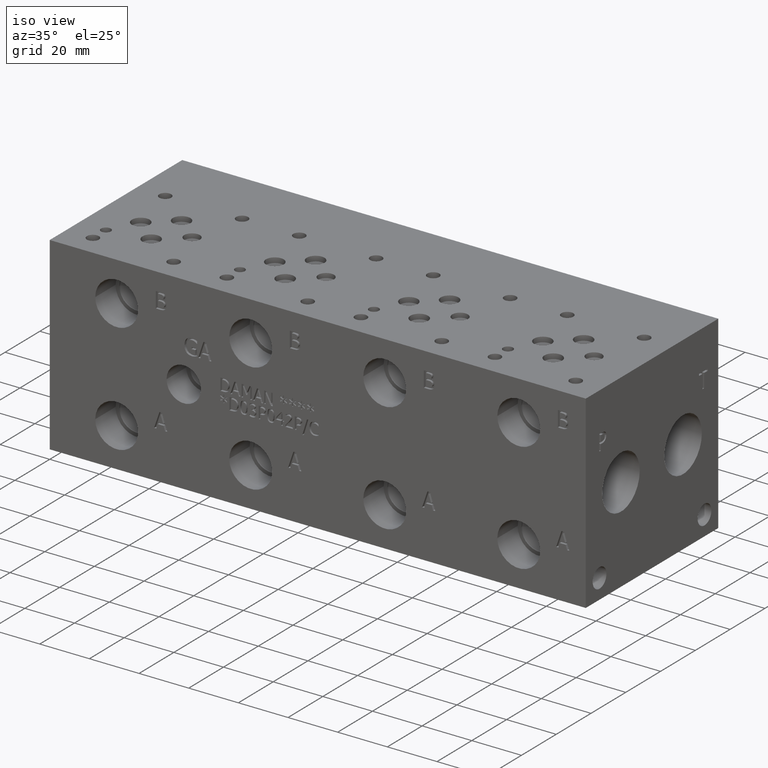
[diagram: clean part render]
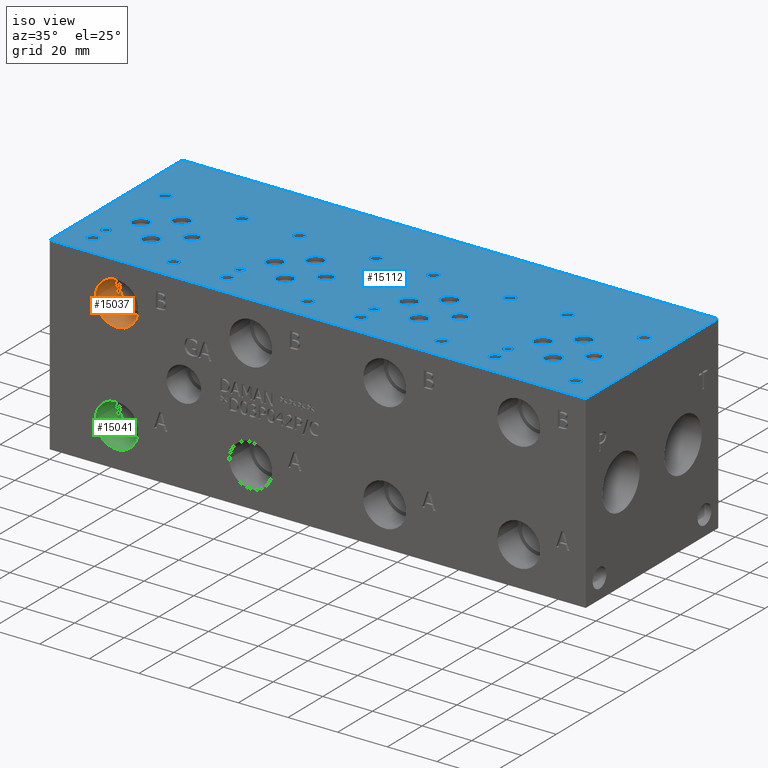
[diagram: same view with three faces highlighted in distinct colors, each labeled with its STEP entity id]
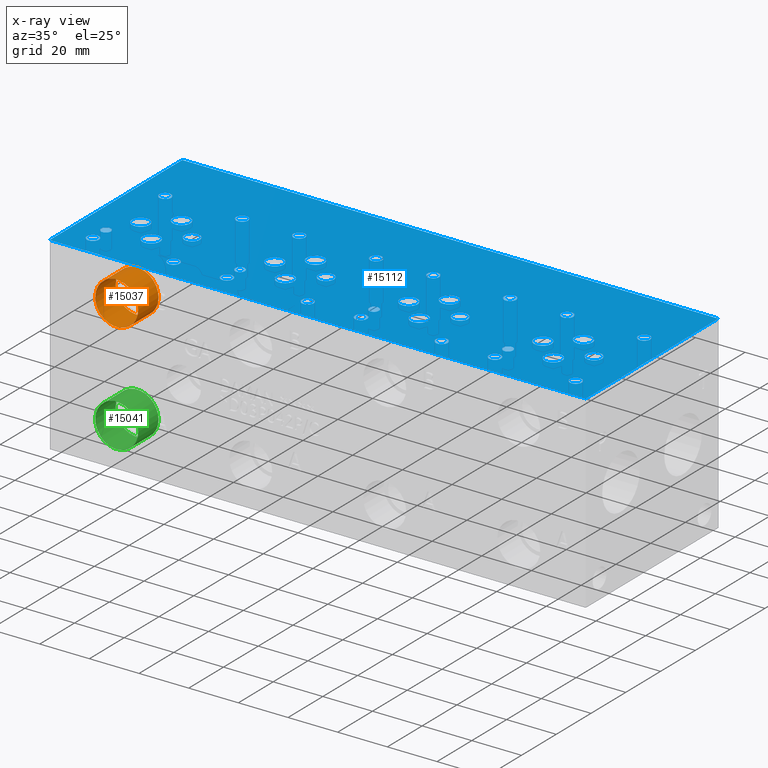
[diagram: x-ray of the same camera — body ghosted, the three highlighted faces saturated]
A machine part, iso view with three faces highlighted in distinct colors.
The next image is the same camera in x-ray (body ghosted, the three faces saturated) — at least one of them is partly hidden behind the body in this view.
Their STEP definitions:

[orange] entity #15037 — the highlighted cylindrical surface (bore or boss wall) has radius 8.6487 mm, axis along (0, -1, 0).
#74=CYLINDRICAL_SURFACE('',#15892,8.6487);
#180=CIRCLE('',#15224,8.6487);
#181=CIRCLE('',#15225,8.6487);
#420=CIRCLE('',#15889,8.6487);
#421=CIRCLE('',#15890,8.6487);
#1933=FACE_OUTER_BOUND('',#2807,.T.);
#2807=EDGE_LOOP('',(#12902,#12903,#12904,#12905,#12906,#12907));
#4233=LINE('',#25718,#5590);
#5590=VECTOR('',#18897,8.6487);
#6066=VERTEX_POINT('',#21791);
#6067=VERTEX_POINT('',#21792);
#6988=VERTEX_POINT('',#25711);
#6989=VERTEX_POINT('',#25712);
#7689=EDGE_CURVE('',#6066,#6067,#180,.T.);
#7690=EDGE_CURVE('',#6067,#6066,#181,.T.);
#9024=EDGE_CURVE('',#6988,#6989,#420,.T.);
#9025=EDGE_CURVE('',#6989,#6988,#421,.T.);
#9027=EDGE_CURVE('',#6067,#6989,#4233,.T.);
#12902=ORIENTED_EDGE('',*,*,#7689,.F.);
#12903=ORIENTED_EDGE('',*,*,#7690,.F.);
#12904=ORIENTED_EDGE('',*,*,#9027,.T.);
#12905=ORIENTED_EDGE('',*,*,#9024,.F.);
#12906=ORIENTED_EDGE('',*,*,#9025,.F.);
#12907=ORIENTED_EDGE('',*,*,#9027,.F.);
#15037=ADVANCED_FACE('',(#1933),#74,.F.);
#15224=AXIS2_PLACEMENT_3D('',#21793,#16626,#16627);
#15225=AXIS2_PLACEMENT_3D('',#21794,#16628,#16629);
#15889=AXIS2_PLACEMENT_3D('',#25713,#18889,#18890);
#15890=AXIS2_PLACEMENT_3D('',#25714,#18891,#18892);
#15892=AXIS2_PLACEMENT_3D('',#25717,#18895,#18896);
#16626=DIRECTION('center_axis',(0.,1.,0.));
#16627=DIRECTION('ref_axis',(1.,0.,0.));
#16628=DIRECTION('center_axis',(0.,1.,0.));
#16629=DIRECTION('ref_axis',(1.,0.,0.));
#18889=DIRECTION('center_axis',(0.,-1.,0.));
#18890=DIRECTION('ref_axis',(1.,0.,0.));
#18891=DIRECTION('center_axis',(0.,-1.,0.));
#18892=DIRECTION('ref_axis',(1.,0.,0.));
#18895=DIRECTION('center_axis',(0.,-1.,0.));
#18896=DIRECTION('ref_axis',(1.,0.,0.));
#18897=DIRECTION('',(0.,1.,0.));
#21791=CARTESIAN_POINT('',(35.6235,0.,60.325));
#21792=CARTESIAN_POINT('',(18.3261,0.,60.325));
#21793=CARTESIAN_POINT('Origin',(26.9748,0.,60.325));
#21794=CARTESIAN_POINT('Origin',(26.9748,0.,60.325));
#25711=CARTESIAN_POINT('',(35.6235,11.7348,60.325));
#25712=CARTESIAN_POINT('',(18.3261,11.7348,60.325));
#25713=CARTESIAN_POINT('Origin',(26.9748,11.7348,60.325));
#25714=CARTESIAN_POINT('Origin',(26.9748,11.7348,60.325));
#25717=CARTESIAN_POINT('Origin',(26.9748,5.8674,60.325));
#25718=CARTESIAN_POINT('',(18.3261,5.8674,60.325));

[blue] entity #15112 — the highlighted planar face has unit normal (0, 0, 1).
#208=CIRCLE('',#15557,3.175);
#209=CIRCLE('',#15558,3.175);
#212=CIRCLE('',#15563,3.175);
#213=CIRCLE('',#15564,3.175);
#216=CIRCLE('',#15569,3.175);
#217=CIRCLE('',#15570,3.175);
#220=CIRCLE('',#15575,3.175);
#221=CIRCLE('',#15576,3.175);
#224=CIRCLE('',#15581,3.5687);
#225=CIRCLE('',#15582,3.5687);
#228=CIRCLE('',#15587,3.5687);
#229=CIRCLE('',#15588,3.5687);
#232=CIRCLE('',#15593,3.5687);
#233=CIRCLE('',#15594,3.5687);
#236=CIRCLE('',#15599,3.5687);
#237=CIRCLE('',#15600,3.5687);
#240=CIRCLE('',#15605,3.5687);
#241=CIRCLE('',#15606,3.5687);
#244=CIRCLE('',#15611,3.5687);
#245=CIRCLE('',#15612,3.5687);
#248=CIRCLE('',#15617,3.5687);
#249=CIRCLE('',#15618,3.5687);
#252=CIRCLE('',#15623,3.5687);
#253=CIRCLE('',#15624,3.5687);
#256=CIRCLE('',#15629,3.5687);
#257=CIRCLE('',#15630,3.5687);
#260=CIRCLE('',#15635,3.5687);
#261=CIRCLE('',#15636,3.5687);
#264=CIRCLE('',#15641,3.5687);
#265=CIRCLE('',#15642,3.5687);
#268=CIRCLE('',#15647,3.5687);
#269=CIRCLE('',#15648,3.5687);
#272=CIRCLE('',#15653,1.9812);
#273=CIRCLE('',#15654,1.9812);
#276=CIRCLE('',#15659,1.9812);
#277=CIRCLE('',#15660,1.9812);
#280=CIRCLE('',#15665,1.9812);
#281=CIRCLE('',#15666,1.9812);
#284=CIRCLE('',#15671,1.9812);
#285=CIRCLE('',#15672,1.9812);
#291=CIRCLE('',#15681,2.413);
#292=CIRCLE('',#15682,2.413);
#298=CIRCLE('',#15692,2.413);
#299=CIRCLE('',#15693,2.413);
#305=CIRCLE('',#15703,2.413);
#306=CIRCLE('',#15704,2.413);
#312=CIRCLE('',#15714,2.413);
#313=CIRCLE('',#15715,2.413);
#319=CIRCLE('',#15725,2.413);
#320=CIRCLE('',#15726,2.413);
#326=CIRCLE('',#15736,2.413);
#327=CIRCLE('',#15737,2.413);
#333=CIRCLE('',#15747,2.413);
#334=CIRCLE('',#15748,2.413);
#340=CIRCLE('',#15758,2.413);
#341=CIRCLE('',#15759,2.413);
#347=CIRCLE('',#15769,2.413);
#348=CIRCLE('',#15770,2.413);
#354=CIRCLE('',#15780,2.413);
#355=CIRCLE('',#15781,2.413);
#361=CIRCLE('',#15791,2.413);
#362=CIRCLE('',#15792,2.413);
#368=CIRCLE('',#15802,2.413);
#369=CIRCLE('',#15803,2.413);
#375=CIRCLE('',#15813,2.413);
#376=CIRCLE('',#15814,2.413);
#382=CIRCLE('',#15824,2.413);
#383=CIRCLE('',#15825,2.413);
#389=CIRCLE('',#15835,2.413);
#390=CIRCLE('',#15836,2.413);
#396=CIRCLE('',#15846,2.413);
#397=CIRCLE('',#15847,2.413);
#632=FACE_BOUND('',#2898,.T.);
#633=FACE_BOUND('',#2899,.T.);
#634=FACE_BOUND('',#2900,.T.);
#635=FACE_BOUND('',#2901,.T.);
#636=FACE_BOUND('',#2902,.T.);
#637=FACE_BOUND('',#2903,.T.);
#638=FACE_BOUND('',#2904,.T.);
#639=FACE_BOUND('',#2905,.T.);
#640=FACE_BOUND('',#2906,.T.);
#641=FACE_BOUND('',#2907,.T.);
#642=FACE_BOUND('',#2908,.T.);
#643=FACE_BOUND('',#2909,.T.);
#644=FACE_BOUND('',#2910,.T.);
#645=FACE_BOUND('',#2911,.T.);
#646=FACE_BOUND('',#2912,.T.);
#647=FACE_BOUND('',#2913,.T.);
#648=FACE_BOUND('',#2914,.T.);
#649=FACE_BOUND('',#2915,.T.);
#650=FACE_BOUND('',#2916,.T.);
#651=FACE_BOUND('',#2917,.T.);
#652=FACE_BOUND('',#2918,.T.);
#653=FACE_BOUND('',#2919,.T.);
#654=FACE_BOUND('',#2920,.T.);
#655=FACE_BOUND('',#2921,.T.);
#656=FACE_BOUND('',#2922,.T.);
#657=FACE_BOUND('',#2923,.T.);
#658=FACE_BOUND('',#2924,.T.);
#659=FACE_BOUND('',#2925,.T.);
#660=FACE_BOUND('',#2926,.T.);
#661=FACE_BOUND('',#2927,.T.);
#662=FACE_BOUND('',#2928,.T.);
#663=FACE_BOUND('',#2929,.T.);
#664=FACE_BOUND('',#2930,.T.);
#665=FACE_BOUND('',#2931,.T.);
#666=FACE_BOUND('',#2932,.T.);
#667=FACE_BOUND('',#2933,.T.);
#2008=FACE_OUTER_BOUND('',#2897,.T.);
#2897=EDGE_LOOP('',(#13268,#13269,#13270,#13271));
#2898=EDGE_LOOP('',(#13272,#13273));
#2899=EDGE_LOOP('',(#13274,#13275));
#2900=EDGE_LOOP('',(#13276,#13277));
#2901=EDGE_LOOP('',(#13278,#13279));
#2902=EDGE_LOOP('',(#13280,#13281));
#2903=EDGE_LOOP('',(#13282,#13283));
#2904=EDGE_LOOP('',(#13284,#13285));
#2905=EDGE_LOOP('',(#13286,#13287));
#2906=EDGE_LOOP('',(#13288,#13289));
#2907=EDGE_LOOP('',(#13290,#13291));
#2908=EDGE_LOOP('',(#13292,#13293));
#2909=EDGE_LOOP('',(#13294,#13295));
#2910=EDGE_LOOP('',(#13296,#13297));
#2911=EDGE_LOOP('',(#13298,#13299));
#2912=EDGE_LOOP('',(#13300,#13301));
#2913=EDGE_LOOP('',(#13302,#13303));
#2914=EDGE_LOOP('',(#13304,#13305));
#2915=EDGE_LOOP('',(#13306,#13307));
#2916=EDGE_LOOP('',(#13308,#13309));
#2917=EDGE_LOOP('',(#13310,#13311));
#2918=EDGE_LOOP('',(#13312,#13313));
#2919=EDGE_LOOP('',(#13314,#13315));
#2920=EDGE_LOOP('',(#13316,#13317));
#2921=EDGE_LOOP('',(#13318,#13319));
#2922=EDGE_LOOP('',(#13320,#13321));
#2923=EDGE_LOOP('',(#13322,#13323));
#2924=EDGE_LOOP('',(#13324,#13325));
#2925=EDGE_LOOP('',(#13326,#13327));
#2926=EDGE_LOOP('',(#13328,#13329));
#2927=EDGE_LOOP('',(#13330,#13331));
#2928=EDGE_LOOP('',(#13332,#13333));
#2929=EDGE_LOOP('',(#13334,#13335));
#2930=EDGE_LOOP('',(#13336,#13337));
#2931=EDGE_LOOP('',(#13338,#13339));
#2932=EDGE_LOOP('',(#13340,#13341));
#2933=EDGE_LOOP('',(#13342,#13343));
#3259=LINE('',#21565,#4616);
#4048=LINE('',#24681,#5405);
#4106=LINE('',#24952,#5463);
#4291=LINE('',#26057,#5648);
#4616=VECTOR('',#16569,10.);
#5405=VECTOR('',#17944,10.);
#5463=VECTOR('',#18056,10.);
#5648=VECTOR('',#19295,10.);
#5991=VERTEX_POINT('',#21562);
#5992=VERTEX_POINT('',#21564);
#6650=VERTEX_POINT('',#24679);
#6708=VERTEX_POINT('',#24951);
#6736=VERTEX_POINT('',#25027);
#6737=VERTEX_POINT('',#25028);
#6741=VERTEX_POINT('',#25040);
#6742=VERTEX_POINT('',#25041);
#6746=VERTEX_POINT('',#25053);
#6747=VERTEX_POINT('',#25054);
#6751=VERTEX_POINT('',#25066);
#6752=VERTEX_POINT('',#25067);
#6756=VERTEX_POINT('',#25079);
#6757=VERTEX_POINT('',#25080);
#6761=VERTEX_POINT('',#25092);
#6762=VERTEX_POINT('',#25093);
#6766=VERTEX_POINT('',#25105);
#6767=VERTEX_POINT('',#25106);
#6771=VERTEX_POINT('',#25118);
#6772=VERTEX_POINT('',#25119);
#6776=VERTEX_POINT('',#25131);
#6777=VERTEX_POINT('',#25132);
#6781=VERTEX_POINT('',#25144);
#6782=VERTEX_POINT('',#25145);
#6786=VERTEX_POINT('',#25157);
#6787=VERTEX_POINT('',#25158);
#6791=VERTEX_POINT('',#25170);
#6792=VERTEX_POINT('',#25171);
#6796=VERTEX_POINT('',#25183);
#6797=VERTEX_POINT('',#25184);
#6801=VERTEX_POINT('',#25196);
#6802=VERTEX_POINT('',#25197);
#6806=VERTEX_POINT('',#25209);
#6807=VERTEX_POINT('',#25210);
#6811=VERTEX_POINT('',#25222);
#6812=VERTEX_POINT('',#25223);
#6816=VERTEX_POINT('',#25235);
#6817=VERTEX_POINT('',#25236);
#6821=VERTEX_POINT('',#25248);
#6822=VERTEX_POINT('',#25249);
#6826=VERTEX_POINT('',#25261);
#6827=VERTEX_POINT('',#25262);
#6831=VERTEX_POINT('',#25274);
#6832=VERTEX_POINT('',#25275);
#6839=VERTEX_POINT('',#25294);
#6840=VERTEX_POINT('',#25295);
#6847=VERTEX_POINT('',#25316);
#6848=VERTEX_POINT('',#25317);
#6855=VERTEX_POINT('',#25338);
#6856=VERTEX_POINT('',#25339);
#6863=VERTEX_POINT('',#25360);
#6864=VERTEX_POINT('',#25361);
#6871=VERTEX_POINT('',#25382);
#6872=VERTEX_POINT('',#25383);
#6879=VERTEX_POINT('',#25404);
#6880=VERTEX_POINT('',#25405);
#6887=VERTEX_POINT('',#25426);
#6888=VERTEX_POINT('',#25427);
#6895=VERTEX_POINT('',#25448);
#6896=VERTEX_POINT('',#25449);
#6903=VERTEX_POINT('',#25470);
#6904=VERTEX_POINT('',#25471);
#6911=VERTEX_POINT('',#25492);
#6912=VERTEX_POINT('',#25493);
#6919=VERTEX_POINT('',#25514);
#6920=VERTEX_POINT('',#25515);
#6927=VERTEX_POINT('',#25536);
#6928=VERTEX_POINT('',#25537);
#6935=VERTEX_POINT('',#25558);
#6936=VERTEX_POINT('',#25559);
#6943=VERTEX_POINT('',#25580);
#6944=VERTEX_POINT('',#25581);
#6951=VERTEX_POINT('',#25602);
#6952=VERTEX_POINT('',#25603);
#6959=VERTEX_POINT('',#25624);
#6960=VERTEX_POINT('',#25625);
#7614=EDGE_CURVE('',#5992,#5991,#3259,.T.);
#8593=EDGE_CURVE('',#5991,#6650,#4048,.T.);
#8675=EDGE_CURVE('',#6708,#5992,#4106,.T.);
#8712=EDGE_CURVE('',#6736,#6737,#208,.T.);
#8713=EDGE_CURVE('',#6737,#6736,#209,.T.);
#8718=EDGE_CURVE('',#6741,#6742,#212,.T.);
#8719=EDGE_CURVE('',#6742,#6741,#213,.T.);
#8724=EDGE_CURVE('',#6746,#6747,#216,.T.);
#8725=EDGE_CURVE('',#6747,#6746,#217,.T.);
#8730=EDGE_CURVE('',#6751,#6752,#220,.T.);
#8731=EDGE_CURVE('',#6752,#6751,#221,.T.);
#8736=EDGE_CURVE('',#6756,#6757,#224,.T.);
#8737=EDGE_CURVE('',#6757,#6756,#225,.T.);
#8742=EDGE_CURVE('',#6761,#6762,#228,.T.);
#8743=EDGE_CURVE('',#6762,#6761,#229,.T.);
#8748=EDGE_CURVE('',#6766,#6767,#232,.T.);
#8749=EDGE_CURVE('',#6767,#6766,#233,.T.);
#8754=EDGE_CURVE('',#6771,#6772,#236,.T.);
#8755=EDGE_CURVE('',#6772,#6771,#237,.T.);
#8760=EDGE_CURVE('',#6776,#6777,#240,.T.);
#8761=EDGE_CURVE('',#6777,#6776,#241,.T.);
#8766=EDGE_CURVE('',#6781,#6782,#244,.T.);
#8767=EDGE_CURVE('',#6782,#6781,#245,.T.);
#8772=EDGE_CURVE('',#6786,#6787,#248,.T.);
#8773=EDGE_CURVE('',#6787,#6786,#249,.T.);
#8778=EDGE_CURVE('',#6791,#6792,#252,.T.);
#8779=EDGE_CURVE('',#6792,#6791,#253,.T.);
#8784=EDGE_CURVE('',#6796,#6797,#256,.T.);
#8785=EDGE_CURVE('',#6797,#6796,#257,.T.);
#8790=EDGE_CURVE('',#6801,#6802,#260,.T.);
#8791=EDGE_CURVE('',#6802,#6801,#261,.T.);
#8796=EDGE_CURVE('',#6806,#6807,#264,.T.);
#8797=EDGE_CURVE('',#6807,#6806,#265,.T.);
#8802=EDGE_CURVE('',#6811,#6812,#268,.T.);
#8803=EDGE_CURVE('',#6812,#6811,#269,.T.);
#8808=EDGE_CURVE('',#6816,#6817,#272,.T.);
#8809=EDGE_CURVE('',#6817,#6816,#273,.T.);
#8814=EDGE_CURVE('',#6821,#6822,#276,.T.);
#8815=EDGE_CURVE('',#6822,#6821,#277,.T.);
#8820=EDGE_CURVE('',#6826,#6827,#280,.T.);
#8821=EDGE_CURVE('',#6827,#6826,#281,.T.);
#8826=EDGE_CURVE('',#6831,#6832,#284,.T.);
#8827=EDGE_CURVE('',#6832,#6831,#285,.T.);
#8835=EDGE_CURVE('',#6839,#6840,#291,.T.);
#8836=EDGE_CURVE('',#6840,#6839,#292,.T.);
#8845=EDGE_CURVE('',#6847,#6848,#298,.T.);
#8846=EDGE_CURVE('',#6848,#6847,#299,.T.);
#8855=EDGE_CURVE('',#6855,#6856,#305,.T.);
#8856=EDGE_CURVE('',#6856,#6855,#306,.T.);
#8865=EDGE_CURVE('',#6863,#6864,#312,.T.);
#8866=EDGE_CURVE('',#6864,#6863,#313,.T.);
#8875=EDGE_CURVE('',#6871,#6872,#319,.T.);
#8876=EDGE_CURVE('',#6872,#6871,#320,.T.);
#8885=EDGE_CURVE('',#6879,#6880,#326,.T.);
#8886=EDGE_CURVE('',#6880,#6879,#327,.T.);
#8895=EDGE_CURVE('',#6887,#6888,#333,.T.);
#8896=EDGE_CURVE('',#6888,#6887,#334,.T.);
#8905=EDGE_CURVE('',#6895,#6896,#340,.T.);
#8906=EDGE_CURVE('',#6896,#6895,#341,.T.);
#8915=EDGE_CURVE('',#6903,#6904,#347,.T.);
#8916=EDGE_CURVE('',#6904,#6903,#348,.T.);
#8925=EDGE_CURVE('',#6911,#6912,#354,.T.);
#8926=EDGE_CURVE('',#6912,#6911,#355,.T.);
#8935=EDGE_CURVE('',#6919,#6920,#361,.T.);
#8936=EDGE_CURVE('',#6920,#6919,#362,.T.);
#8945=EDGE_CURVE('',#6927,#6928,#368,.T.);
#8946=EDGE_CURVE('',#6928,#6927,#369,.T.);
#8955=EDGE_CURVE('',#6935,#6936,#375,.T.);
#8956=EDGE_CURVE('',#6936,#6935,#376,.T.);
#8965=EDGE_CURVE('',#6943,#6944,#382,.T.);
#8966=EDGE_CURVE('',#6944,#6943,#383,.T.);
#8975=EDGE_CURVE('',#6951,#6952,#389,.T.);
#8976=EDGE_CURVE('',#6952,#6951,#390,.T.);
#8985=EDGE_CURVE('',#6959,#6960,#396,.T.);
#8986=EDGE_CURVE('',#6960,#6959,#397,.T.);
#9183=EDGE_CURVE('',#6650,#6708,#4291,.T.);
#13268=ORIENTED_EDGE('',*,*,#7614,.T.);
#13269=ORIENTED_EDGE('',*,*,#8593,.T.);
#13270=ORIENTED_EDGE('',*,*,#9183,.T.);
#13271=ORIENTED_EDGE('',*,*,#8675,.T.);
#13272=ORIENTED_EDGE('',*,*,#8712,.T.);
#13273=ORIENTED_EDGE('',*,*,#8713,.T.);
#13274=ORIENTED_EDGE('',*,*,#8718,.T.);
#13275=ORIENTED_EDGE('',*,*,#8719,.T.);
#13276=ORIENTED_EDGE('',*,*,#8724,.T.);
#13277=ORIENTED_EDGE('',*,*,#8725,.T.);
#13278=ORIENTED_EDGE('',*,*,#8730,.T.);
#13279=ORIENTED_EDGE('',*,*,#8731,.T.);
#13280=ORIENTED_EDGE('',*,*,#8736,.T.);
#13281=ORIENTED_EDGE('',*,*,#8737,.T.);
#13282=ORIENTED_EDGE('',*,*,#8742,.T.);
#13283=ORIENTED_EDGE('',*,*,#8743,.T.);
#13284=ORIENTED_EDGE('',*,*,#8748,.T.);
#13285=ORIENTED_EDGE('',*,*,#8749,.T.);
#13286=ORIENTED_EDGE('',*,*,#8754,.T.);
#13287=ORIENTED_EDGE('',*,*,#8755,.T.);
#13288=ORIENTED_EDGE('',*,*,#8760,.T.);
#13289=ORIENTED_EDGE('',*,*,#8761,.T.);
#13290=ORIENTED_EDGE('',*,*,#8766,.T.);
#13291=ORIENTED_EDGE('',*,*,#8767,.T.);
#13292=ORIENTED_EDGE('',*,*,#8772,.T.);
#13293=ORIENTED_EDGE('',*,*,#8773,.T.);
#13294=ORIENTED_EDGE('',*,*,#8778,.T.);
#13295=ORIENTED_EDGE('',*,*,#8779,.T.);
#13296=ORIENTED_EDGE('',*,*,#8784,.T.);
#13297=ORIENTED_EDGE('',*,*,#8785,.T.);
#13298=ORIENTED_EDGE('',*,*,#8790,.T.);
#13299=ORIENTED_EDGE('',*,*,#8791,.T.);
#13300=ORIENTED_EDGE('',*,*,#8796,.T.);
#13301=ORIENTED_EDGE('',*,*,#8797,.T.);
#13302=ORIENTED_EDGE('',*,*,#8802,.T.);
#13303=ORIENTED_EDGE('',*,*,#8803,.T.);
#13304=ORIENTED_EDGE('',*,*,#8808,.T.);
#13305=ORIENTED_EDGE('',*,*,#8809,.T.);
#13306=ORIENTED_EDGE('',*,*,#8814,.T.);
#13307=ORIENTED_EDGE('',*,*,#8815,.T.);
#13308=ORIENTED_EDGE('',*,*,#8820,.T.);
#13309=ORIENTED_EDGE('',*,*,#8821,.T.);
#13310=ORIENTED_EDGE('',*,*,#8826,.T.);
#13311=ORIENTED_EDGE('',*,*,#8827,.T.);
#13312=ORIENTED_EDGE('',*,*,#8835,.T.);
#13313=ORIENTED_EDGE('',*,*,#8836,.T.);
#13314=ORIENTED_EDGE('',*,*,#8845,.T.);
#13315=ORIENTED_EDGE('',*,*,#8846,.T.);
#13316=ORIENTED_EDGE('',*,*,#8855,.T.);
#13317=ORIENTED_EDGE('',*,*,#8856,.T.);
#13318=ORIENTED_EDGE('',*,*,#8865,.T.);
#13319=ORIENTED_EDGE('',*,*,#8866,.T.);
#13320=ORIENTED_EDGE('',*,*,#8875,.T.);
#13321=ORIENTED_EDGE('',*,*,#8876,.T.);
#13322=ORIENTED_EDGE('',*,*,#8885,.T.);
#13323=ORIENTED_EDGE('',*,*,#8886,.T.);
#13324=ORIENTED_EDGE('',*,*,#8895,.T.);
#13325=ORIENTED_EDGE('',*,*,#8896,.T.);
#13326=ORIENTED_EDGE('',*,*,#8905,.T.);
#13327=ORIENTED_EDGE('',*,*,#8906,.T.);
#13328=ORIENTED_EDGE('',*,*,#8915,.T.);
#13329=ORIENTED_EDGE('',*,*,#8916,.T.);
#13330=ORIENTED_EDGE('',*,*,#8925,.T.);
#13331=ORIENTED_EDGE('',*,*,#8926,.T.);
#13332=ORIENTED_EDGE('',*,*,#8935,.T.);
#13333=ORIENTED_EDGE('',*,*,#8936,.T.);
#13334=ORIENTED_EDGE('',*,*,#8945,.T.);
#13335=ORIENTED_EDGE('',*,*,#8946,.T.);
#13336=ORIENTED_EDGE('',*,*,#8955,.T.);
#13337=ORIENTED_EDGE('',*,*,#8956,.T.);
#13338=ORIENTED_EDGE('',*,*,#8965,.T.);
#13339=ORIENTED_EDGE('',*,*,#8966,.T.);
#13340=ORIENTED_EDGE('',*,*,#8975,.T.);
#13341=ORIENTED_EDGE('',*,*,#8976,.T.);
#13342=ORIENTED_EDGE('',*,*,#8985,.T.);
#13343=ORIENTED_EDGE('',*,*,#8986,.T.);
#13778=PLANE('',#16065);
#15112=ADVANCED_FACE('',(#2008,#632,#633,#634,#635,#636,#637,#638,#639,
#640,#641,#642,#643,#644,#645,#646,#647,#648,#649,#650,#651,#652,#653,#654,
#655,#656,#657,#658,#659,#660,#661,#662,#663,#664,#665,#666,#667),#13778,
 .T.);
#15557=AXIS2_PLACEMENT_3D('',#25029,#18125,#18126);
#15558=AXIS2_PLACEMENT_3D('',#25030,#18127,#18128);
#15563=AXIS2_PLACEMENT_3D('',#25042,#18139,#18140);
#15564=AXIS2_PLACEMENT_3D('',#25043,#18141,#18142);
#15569=AXIS2_PLACEMENT_3D('',#25055,#18153,#18154);
#15570=AXIS2_PLACEMENT_3D('',#25056,#18155,#18156);
#15575=AXIS2_PLACEMENT_3D('',#25068,#18167,#18168);
#15576=AXIS2_PLACEMENT_3D('',#25069,#18169,#18170);
#15581=AXIS2_PLACEMENT_3D('',#25081,#18181,#18182);
#15582=AXIS2_PLACEMENT_3D('',#25082,#18183,#18184);
#15587=AXIS2_PLACEMENT_3D('',#25094,#18195,#18196);
#15588=AXIS2_PLACEMENT_3D('',#25095,#18197,#18198);
#15593=AXIS2_PLACEMENT_3D('',#25107,#18209,#18210);
#15594=AXIS2_PLACEMENT_3D('',#25108,#18211,#18212);
#15599=AXIS2_PLACEMENT_3D('',#25120,#18223,#18224);
#15600=AXIS2_PLACEMENT_3D('',#25121,#18225,#18226);
#15605=AXIS2_PLACEMENT_3D('',#25133,#18237,#18238);
#15606=AXIS2_PLACEMENT_3D('',#25134,#18239,#18240);
#15611=AXIS2_PLACEMENT_3D('',#25146,#18251,#18252);
#15612=AXIS2_PLACEMENT_3D('',#25147,#18253,#18254);
#15617=AXIS2_PLACEMENT_3D('',#25159,#18265,#18266);
#15618=AXIS2_PLACEMENT_3D('',#25160,#18267,#18268);
#15623=AXIS2_PLACEMENT_3D('',#25172,#18279,#18280);
#15624=AXIS2_PLACEMENT_3D('',#25173,#18281,#18282);
#15629=AXIS2_PLACEMENT_3D('',#25185,#18293,#18294);
#15630=AXIS2_PLACEMENT_3D('',#25186,#18295,#18296);
#15635=AXIS2_PLACEMENT_3D('',#25198,#18307,#18308);
#15636=AXIS2_PLACEMENT_3D('',#25199,#18309,#18310);
#15641=AXIS2_PLACEMENT_3D('',#25211,#18321,#18322);
#15642=AXIS2_PLACEMENT_3D('',#25212,#18323,#18324);
#15647=AXIS2_PLACEMENT_3D('',#25224,#18335,#18336);
#15648=AXIS2_PLACEMENT_3D('',#25225,#18337,#18338);
#15653=AXIS2_PLACEMENT_3D('',#25237,#18349,#18350);
#15654=AXIS2_PLACEMENT_3D('',#25238,#18351,#18352);
#15659=AXIS2_PLACEMENT_3D('',#25250,#18363,#18364);
#15660=AXIS2_PLACEMENT_3D('',#25251,#18365,#18366);
#15665=AXIS2_PLACEMENT_3D('',#25263,#18377,#18378);
#15666=AXIS2_PLACEMENT_3D('',#25264,#18379,#18380);
#15671=AXIS2_PLACEMENT_3D('',#25276,#18391,#18392);
#15672=AXIS2_PLACEMENT_3D('',#25277,#18393,#18394);
#15681=AXIS2_PLACEMENT_3D('',#25296,#18413,#18414);
#15682=AXIS2_PLACEMENT_3D('',#25297,#18415,#18416);
#15692=AXIS2_PLACEMENT_3D('',#25318,#18438,#18439);
#15693=AXIS2_PLACEMENT_3D('',#25319,#18440,#18441);
#15703=AXIS2_PLACEMENT_3D('',#25340,#18463,#18464);
#15704=AXIS2_PLACEMENT_3D('',#25341,#18465,#18466);
#15714=AXIS2_PLACEMENT_3D('',#25362,#18488,#18489);
#15715=AXIS2_PLACEMENT_3D('',#25363,#18490,#18491);
#15725=AXIS2_PLACEMENT_3D('',#25384,#18513,#18514);
#15726=AXIS2_PLACEMENT_3D('',#25385,#18515,#18516);
#15736=AXIS2_PLACEMENT_3D('',#25406,#18538,#18539);
#15737=AXIS2_PLACEMENT_3D('',#25407,#18540,#18541);
#15747=AXIS2_PLACEMENT_3D('',#25428,#18563,#18564);
#15748=AXIS2_PLACEMENT_3D('',#25429,#18565,#18566);
#15758=AXIS2_PLACEMENT_3D('',#25450,#18588,#18589);
#15759=AXIS2_PLACEMENT_3D('',#25451,#18590,#18591);
#15769=AXIS2_PLACEMENT_3D('',#25472,#18613,#18614);
#15770=AXIS2_PLACEMENT_3D('',#25473,#18615,#18616);
#15780=AXIS2_PLACEMENT_3D('',#25494,#18638,#18639);
#15781=AXIS2_PLACEMENT_3D('',#25495,#18640,#18641);
#15791=AXIS2_PLACEMENT_3D('',#25516,#18663,#18664);
#15792=AXIS2_PLACEMENT_3D('',#25517,#18665,#18666);
#15802=AXIS2_PLACEMENT_3D('',#25538,#18688,#18689);
#15803=AXIS2_PLACEMENT_3D('',#25539,#18690,#18691);
#15813=AXIS2_PLACEMENT_3D('',#25560,#18713,#18714);
#15814=AXIS2_PLACEMENT_3D('',#25561,#18715,#18716);
#15824=AXIS2_PLACEMENT_3D('',#25582,#18738,#18739);
#15825=AXIS2_PLACEMENT_3D('',#25583,#18740,#18741);
#15835=AXIS2_PLACEMENT_3D('',#25604,#18763,#18764);
#15836=AXIS2_PLACEMENT_3D('',#25605,#18765,#18766);
#15846=AXIS2_PLACEMENT_3D('',#25626,#18788,#18789);
#15847=AXIS2_PLACEMENT_3D('',#25627,#18790,#18791);
#16065=AXIS2_PLACEMENT_3D('',#26060,#19300,#19301);
#16569=DIRECTION('',(1.,0.,0.));
#17944=DIRECTION('',(0.,1.,0.));
#18056=DIRECTION('',(0.,-1.,0.));
#18125=DIRECTION('center_axis',(0.,0.,-1.));
#18126=DIRECTION('ref_axis',(1.,0.,0.));
#18127=DIRECTION('center_axis',(0.,0.,-1.));
#18128=DIRECTION('ref_axis',(1.,0.,0.));
#18139=DIRECTION('center_axis',(0.,0.,-1.));
#18140=DIRECTION('ref_axis',(1.,0.,0.));
#18141=DIRECTION('center_axis',(0.,0.,-1.));
#18142=DIRECTION('ref_axis',(1.,0.,0.));
#18153=DIRECTION('center_axis',(0.,0.,-1.));
#18154=DIRECTION('ref_axis',(1.,0.,0.));
#18155=DIRECTION('center_axis',(0.,0.,-1.));
#18156=DIRECTION('ref_axis',(1.,0.,0.));
#18167=DIRECTION('center_axis',(0.,0.,-1.));
#18168=DIRECTION('ref_axis',(1.,0.,0.));
#18169=DIRECTION('center_axis',(0.,0.,-1.));
#18170=DIRECTION('ref_axis',(1.,0.,0.));
#18181=DIRECTION('center_axis',(0.,0.,-1.));
#18182=DIRECTION('ref_axis',(1.,0.,0.));
#18183=DIRECTION('center_axis',(0.,0.,-1.));
#18184=DIRECTION('ref_axis',(1.,0.,0.));
#18195=DIRECTION('center_axis',(0.,0.,-1.));
#18196=DIRECTION('ref_axis',(1.,0.,0.));
#18197=DIRECTION('center_axis',(0.,0.,-1.));
#18198=DIRECTION('ref_axis',(1.,0.,0.));
#18209=DIRECTION('center_axis',(0.,0.,-1.));
#18210=DIRECTION('ref_axis',(1.,0.,0.));
#18211=DIRECTION('center_axis',(0.,0.,-1.));
#18212=DIRECTION('ref_axis',(1.,0.,0.));
#18223=DIRECTION('center_axis',(0.,0.,-1.));
#18224=DIRECTION('ref_axis',(1.,0.,0.));
#18225=DIRECTION('center_axis',(0.,0.,-1.));
#18226=DIRECTION('ref_axis',(1.,0.,0.));
#18237=DIRECTION('center_axis',(0.,0.,-1.));
#18238=DIRECTION('ref_axis',(1.,0.,0.));
#18239=DIRECTION('center_axis',(0.,0.,-1.));
#18240=DIRECTION('ref_axis',(1.,0.,0.));
#18251=DIRECTION('center_axis',(0.,0.,-1.));
#18252=DIRECTION('ref_axis',(1.,0.,0.));
#18253=DIRECTION('center_axis',(0.,0.,-1.));
#18254=DIRECTION('ref_axis',(1.,0.,0.));
#18265=DIRECTION('center_axis',(0.,0.,-1.));
#18266=DIRECTION('ref_axis',(1.,0.,0.));
#18267=DIRECTION('center_axis',(0.,0.,-1.));
#18268=DIRECTION('ref_axis',(1.,0.,0.));
#18279=DIRECTION('center_axis',(0.,0.,-1.));
#18280=DIRECTION('ref_axis',(1.,0.,0.));
#18281=DIRECTION('center_axis',(0.,0.,-1.));
#18282=DIRECTION('ref_axis',(1.,0.,0.));
#18293=DIRECTION('center_axis',(0.,0.,-1.));
#18294=DIRECTION('ref_axis',(1.,0.,0.));
#18295=DIRECTION('center_axis',(0.,0.,-1.));
#18296=DIRECTION('ref_axis',(1.,0.,0.));
#18307=DIRECTION('center_axis',(0.,0.,-1.));
#18308=DIRECTION('ref_axis',(1.,0.,0.));
#18309=DIRECTION('center_axis',(0.,0.,-1.));
#18310=DIRECTION('ref_axis',(1.,0.,0.));
#18321=DIRECTION('center_axis',(0.,0.,-1.));
#18322=DIRECTION('ref_axis',(1.,0.,0.));
#18323=DIRECTION('center_axis',(0.,0.,-1.));
#18324=DIRECTION('ref_axis',(1.,0.,0.));
#18335=DIRECTION('center_axis',(0.,0.,-1.));
#18336=DIRECTION('ref_axis',(1.,0.,0.));
#18337=DIRECTION('center_axis',(0.,0.,-1.));
#18338=DIRECTION('ref_axis',(1.,0.,0.));
#18349=DIRECTION('center_axis',(0.,0.,-1.));
#18350=DIRECTION('ref_axis',(1.,0.,0.));
#18351=DIRECTION('center_axis',(0.,0.,-1.));
#18352=DIRECTION('ref_axis',(1.,0.,0.));
#18363=DIRECTION('center_axis',(0.,0.,-1.));
#18364=DIRECTION('ref_axis',(1.,0.,0.));
#18365=DIRECTION('center_axis',(0.,0.,-1.));
#18366=DIRECTION('ref_axis',(1.,0.,0.));
#18377=DIRECTION('center_axis',(0.,0.,-1.));
#18378=DIRECTION('ref_axis',(1.,0.,0.));
#18379=DIRECTION('center_axis',(0.,0.,-1.));
#18380=DIRECTION('ref_axis',(1.,0.,0.));
#18391=DIRECTION('center_axis',(0.,0.,-1.));
#18392=DIRECTION('ref_axis',(1.,0.,0.));
#18393=DIRECTION('center_axis',(0.,0.,-1.));
#18394=DIRECTION('ref_axis',(1.,0.,0.));
#18413=DIRECTION('center_axis',(0.,0.,-1.));
#18414=DIRECTION('ref_axis',(1.,0.,0.));
#18415=DIRECTION('center_axis',(0.,0.,-1.));
#18416=DIRECTION('ref_axis',(1.,0.,0.));
#18438=DIRECTION('center_axis',(0.,0.,-1.));
#18439=DIRECTION('ref_axis',(1.,0.,0.));
#18440=DIRECTION('center_axis',(0.,0.,-1.));
#18441=DIRECTION('ref_axis',(1.,0.,0.));
#18463=DIRECTION('center_axis',(0.,0.,-1.));
#18464=DIRECTION('ref_axis',(1.,0.,0.));
#18465=DIRECTION('center_axis',(0.,0.,-1.));
#18466=DIRECTION('ref_axis',(1.,0.,0.));
#18488=DIRECTION('center_axis',(0.,0.,-1.));
#18489=DIRECTION('ref_axis',(1.,0.,0.));
#18490=DIRECTION('center_axis',(0.,0.,-1.));
#18491=DIRECTION('ref_axis',(1.,0.,0.));
#18513=DIRECTION('center_axis',(0.,0.,-1.));
#18514=DIRECTION('ref_axis',(1.,0.,0.));
#18515=DIRECTION('center_axis',(0.,0.,-1.));
#18516=DIRECTION('ref_axis',(1.,0.,0.));
#18538=DIRECTION('center_axis',(0.,0.,-1.));
#18539=DIRECTION('ref_axis',(1.,0.,0.));
#18540=DIRECTION('center_axis',(0.,0.,-1.));
#18541=DIRECTION('ref_axis',(1.,0.,0.));
#18563=DIRECTION('center_axis',(0.,0.,-1.));
#18564=DIRECTION('ref_axis',(1.,0.,0.));
#18565=DIRECTION('center_axis',(0.,0.,-1.));
#18566=DIRECTION('ref_axis',(1.,0.,0.));
#18588=DIRECTION('center_axis',(0.,0.,-1.));
#18589=DIRECTION('ref_axis',(1.,0.,0.));
#18590=DIRECTION('center_axis',(0.,0.,-1.));
#18591=DIRECTION('ref_axis',(1.,0.,0.));
#18613=DIRECTION('center_axis',(0.,0.,-1.));
#18614=DIRECTION('ref_axis',(1.,0.,0.));
#18615=DIRECTION('center_axis',(0.,0.,-1.));
#18616=DIRECTION('ref_axis',(1.,0.,0.));
#18638=DIRECTION('center_axis',(0.,0.,-1.));
#18639=DIRECTION('ref_axis',(1.,0.,0.));
#18640=DIRECTION('center_axis',(0.,0.,-1.));
#18641=DIRECTION('ref_axis',(1.,0.,0.));
#18663=DIRECTION('center_axis',(0.,0.,-1.));
#18664=DIRECTION('ref_axis',(1.,0.,0.));
#18665=DIRECTION('center_axis',(0.,0.,-1.));
#18666=DIRECTION('ref_axis',(1.,0.,0.));
#18688=DIRECTION('center_axis',(0.,0.,-1.));
#18689=DIRECTION('ref_axis',(1.,0.,0.));
#18690=DIRECTION('center_axis',(0.,0.,-1.));
#18691=DIRECTION('ref_axis',(1.,0.,0.));
#18713=DIRECTION('center_axis',(0.,0.,-1.));
#18714=DIRECTION('ref_axis',(1.,0.,0.));
#18715=DIRECTION('center_axis',(0.,0.,-1.));
#18716=DIRECTION('ref_axis',(1.,0.,0.));
#18738=DIRECTION('center_axis',(0.,0.,-1.));
#18739=DIRECTION('ref_axis',(1.,0.,0.));
#18740=DIRECTION('center_axis',(0.,0.,-1.));
#18741=DIRECTION('ref_axis',(1.,0.,0.));
#18763=DIRECTION('center_axis',(0.,0.,-1.));
#18764=DIRECTION('ref_axis',(1.,0.,0.));
#18765=DIRECTION('center_axis',(0.,0.,-1.));
#18766=DIRECTION('ref_axis',(1.,0.,0.));
#18788=DIRECTION('center_axis',(0.,0.,-1.));
#18789=DIRECTION('ref_axis',(1.,0.,0.));
#18790=DIRECTION('center_axis',(0.,0.,-1.));
#18791=DIRECTION('ref_axis',(1.,0.,0.));
#19295=DIRECTION('',(-1.,0.,0.));
#19300=DIRECTION('center_axis',(0.,0.,1.));
#19301=DIRECTION('ref_axis',(1.,0.,0.));
#21562=CARTESIAN_POINT('',(215.9,0.,76.2));
#21564=CARTESIAN_POINT('',(0.,0.,76.2));
#21565=CARTESIAN_POINT('',(0.,0.,76.2));
#24679=CARTESIAN_POINT('',(215.9,76.2,76.2));
#24681=CARTESIAN_POINT('',(215.9,0.,76.2));
#24951=CARTESIAN_POINT('',(0.,76.2,76.2));
#24952=CARTESIAN_POINT('',(0.,76.2,76.2));
#25027=CARTESIAN_POINT('',(148.4376,28.575,76.2));
#25028=CARTESIAN_POINT('',(142.0876,28.575,76.2));
#25029=CARTESIAN_POINT('Origin',(145.2626,28.575,76.2));
#25030=CARTESIAN_POINT('Origin',(145.2626,28.575,76.2));
#25040=CARTESIAN_POINT('',(40.4876,28.575,76.2));
#25041=CARTESIAN_POINT('',(34.1376,28.575,76.2));
#25042=CARTESIAN_POINT('Origin',(37.3126,28.575,76.2));
#25043=CARTESIAN_POINT('Origin',(37.3126,28.575,76.2));
#25053=CARTESIAN_POINT('',(94.4626,28.575,76.2));
#25054=CARTESIAN_POINT('',(88.1126,28.575,76.2));
#25055=CARTESIAN_POINT('Origin',(91.2876,28.575,76.2));
#25056=CARTESIAN_POINT('Origin',(91.2876,28.575,76.2));
#25066=CARTESIAN_POINT('',(202.4126,28.575,76.2));
#25067=CARTESIAN_POINT('',(196.0626,28.575,76.2));
#25068=CARTESIAN_POINT('Origin',(199.2376,28.575,76.2));
#25069=CARTESIAN_POINT('Origin',(199.2376,28.575,76.2));
#25079=CARTESIAN_POINT('',(192.4685,37.3126,76.2));
#25080=CARTESIAN_POINT('',(185.3311,37.3126,76.2));
#25081=CARTESIAN_POINT('Origin',(188.8998,37.3126,76.2));
#25082=CARTESIAN_POINT('Origin',(188.8998,37.3126,76.2));
#25092=CARTESIAN_POINT('',(138.4935,19.8374,76.2));
#25093=CARTESIAN_POINT('',(131.3561,19.8374,76.2));
#25094=CARTESIAN_POINT('Origin',(134.9248,19.8374,76.2));
#25095=CARTESIAN_POINT('Origin',(134.9248,19.8374,76.2));
#25105=CARTESIAN_POINT('',(128.1811,28.575,76.2));
#25106=CARTESIAN_POINT('',(121.0437,28.575,76.2));
#25107=CARTESIAN_POINT('Origin',(124.6124,28.575,76.2));
#25108=CARTESIAN_POINT('Origin',(124.6124,28.575,76.2));
#25118=CARTESIAN_POINT('',(84.5185,37.3126,76.2));
#25119=CARTESIAN_POINT('',(77.3811,37.3126,76.2));
#25120=CARTESIAN_POINT('Origin',(80.9498,37.3126,76.2));
#25121=CARTESIAN_POINT('Origin',(80.9498,37.3126,76.2));
#25131=CARTESIAN_POINT('',(30.5435,19.8374,76.2));
#25132=CARTESIAN_POINT('',(23.4061,19.8374,76.2));
#25133=CARTESIAN_POINT('Origin',(26.9748,19.8374,76.2));
#25134=CARTESIAN_POINT('Origin',(26.9748,19.8374,76.2));
#25144=CARTESIAN_POINT('',(20.2311,28.575,76.2));
#25145=CARTESIAN_POINT('',(13.0937,28.575,76.2));
#25146=CARTESIAN_POINT('Origin',(16.6624,28.575,76.2));
#25147=CARTESIAN_POINT('Origin',(16.6624,28.575,76.2));
#25157=CARTESIAN_POINT('',(30.5435,37.3126,76.2));
#25158=CARTESIAN_POINT('',(23.4061,37.3126,76.2));
#25159=CARTESIAN_POINT('Origin',(26.9748,37.3126,76.2));
#25160=CARTESIAN_POINT('Origin',(26.9748,37.3126,76.2));
#25170=CARTESIAN_POINT('',(74.2061,28.575,76.2));
#25171=CARTESIAN_POINT('',(67.0687,28.575,76.2));
#25172=CARTESIAN_POINT('Origin',(70.6374,28.575,76.2));
#25173=CARTESIAN_POINT('Origin',(70.6374,28.575,76.2));
#25183=CARTESIAN_POINT('',(84.5185,19.8374,76.2));
#25184=CARTESIAN_POINT('',(77.3811,19.8374,76.2));
#25185=CARTESIAN_POINT('Origin',(80.9498,19.8374,76.2));
#25186=CARTESIAN_POINT('Origin',(80.9498,19.8374,76.2));
#25196=CARTESIAN_POINT('',(138.4935,37.3126,76.2));
#25197=CARTESIAN_POINT('',(131.3561,37.3126,76.2));
#25198=CARTESIAN_POINT('Origin',(134.9248,37.3126,76.2));
#25199=CARTESIAN_POINT('Origin',(134.9248,37.3126,76.2));
#25209=CARTESIAN_POINT('',(182.1561,28.575,76.2));
#25210=CARTESIAN_POINT('',(175.0187,28.575,76.2));
#25211=CARTESIAN_POINT('Origin',(178.5874,28.575,76.2));
#25212=CARTESIAN_POINT('Origin',(178.5874,28.575,76.2));
#25222=CARTESIAN_POINT('',(192.4685,19.8374,76.2));
#25223=CARTESIAN_POINT('',(185.3311,19.8374,76.2));
#25224=CARTESIAN_POINT('Origin',(188.8998,19.8374,76.2));
#25225=CARTESIAN_POINT('Origin',(188.8998,19.8374,76.2));
#25235=CARTESIAN_POINT('',(120.65,17.018,76.2));
#25236=CARTESIAN_POINT('',(116.6876,17.018,76.2));
#25237=CARTESIAN_POINT('Origin',(118.6688,17.018,76.2));
#25238=CARTESIAN_POINT('Origin',(118.6688,17.018,76.2));
#25248=CARTESIAN_POINT('',(12.7,17.018,76.2));
#25249=CARTESIAN_POINT('',(8.7376,17.018,76.2));
#25250=CARTESIAN_POINT('Origin',(10.7188,17.018,76.2));
#25251=CARTESIAN_POINT('Origin',(10.7188,17.018,76.2));
#25261=CARTESIAN_POINT('',(66.675,17.018,76.2));
#25262=CARTESIAN_POINT('',(62.7126,17.018,76.2));
#25263=CARTESIAN_POINT('Origin',(64.6938,17.018,76.2));
#25264=CARTESIAN_POINT('Origin',(64.6938,17.018,76.2));
#25274=CARTESIAN_POINT('',(174.625,17.018,76.2));
#25275=CARTESIAN_POINT('',(170.6626,17.018,76.2));
#25276=CARTESIAN_POINT('Origin',(172.6438,17.018,76.2));
#25277=CARTESIAN_POINT('Origin',(172.6438,17.018,76.2));
#25294=CARTESIAN_POINT('',(207.5942,9.525,76.2));
#25295=CARTESIAN_POINT('',(202.7682,9.525,76.2));
#25296=CARTESIAN_POINT('Origin',(205.1812,9.525,76.2));
#25297=CARTESIAN_POINT('Origin',(205.1812,9.525,76.2));
#25316=CARTESIAN_POINT('',(175.8442,50.0126,76.2));
#25317=CARTESIAN_POINT('',(171.0182,50.0126,76.2));
#25318=CARTESIAN_POINT('Origin',(173.4312,50.0126,76.2));
#25319=CARTESIAN_POINT('Origin',(173.4312,50.0126,76.2));
#25338=CARTESIAN_POINT('',(153.6192,9.525,76.2));
#25339=CARTESIAN_POINT('',(148.7932,9.525,76.2));
#25340=CARTESIAN_POINT('Origin',(151.2062,9.525,76.2));
#25341=CARTESIAN_POINT('Origin',(151.2062,9.525,76.2));
#25360=CARTESIAN_POINT('',(121.8692,50.0126,76.2));
#25361=CARTESIAN_POINT('',(117.0432,50.0126,76.2));
#25362=CARTESIAN_POINT('Origin',(119.4562,50.0126,76.2));
#25363=CARTESIAN_POINT('Origin',(119.4562,50.0126,76.2));
#25382=CARTESIAN_POINT('',(99.6442,9.525,76.2));
#25383=CARTESIAN_POINT('',(94.8182,9.525,76.2));
#25384=CARTESIAN_POINT('Origin',(97.2312,9.525,76.2));
#25385=CARTESIAN_POINT('Origin',(97.2312,9.525,76.2));
#25404=CARTESIAN_POINT('',(67.8942,50.0126,76.2));
#25405=CARTESIAN_POINT('',(63.0682,50.0126,76.2));
#25406=CARTESIAN_POINT('Origin',(65.4812,50.0126,76.2));
#25407=CARTESIAN_POINT('Origin',(65.4812,50.0126,76.2));
#25426=CARTESIAN_POINT('',(45.6692,9.525,76.2));
#25427=CARTESIAN_POINT('',(40.8432,9.525,76.2));
#25428=CARTESIAN_POINT('Origin',(43.2562,9.525,76.2));
#25429=CARTESIAN_POINT('Origin',(43.2562,9.525,76.2));
#25448=CARTESIAN_POINT('',(13.9192,50.0126,76.2));
#25449=CARTESIAN_POINT('',(9.0932,50.0126,76.2));
#25450=CARTESIAN_POINT('Origin',(11.5062,50.0126,76.2));
#25451=CARTESIAN_POINT('Origin',(11.5062,50.0126,76.2));
#25470=CARTESIAN_POINT('',(44.8818,50.0126,76.2));
#25471=CARTESIAN_POINT('',(40.0558,50.0126,76.2));
#25472=CARTESIAN_POINT('Origin',(42.4688,50.0126,76.2));
#25473=CARTESIAN_POINT('Origin',(42.4688,50.0126,76.2));
#25492=CARTESIAN_POINT('',(13.1318,9.525,76.2));
#25493=CARTESIAN_POINT('',(8.3058,9.525,76.2));
#25494=CARTESIAN_POINT('Origin',(10.7188,9.525,76.2));
#25495=CARTESIAN_POINT('Origin',(10.7188,9.525,76.2));
#25514=CARTESIAN_POINT('',(98.8568,50.0126,76.2));
#25515=CARTESIAN_POINT('',(94.0308,50.0126,76.2));
#25516=CARTESIAN_POINT('Origin',(96.4438,50.0126,76.2));
#25517=CARTESIAN_POINT('Origin',(96.4438,50.0126,76.2));
#25536=CARTESIAN_POINT('',(67.1068,9.525,76.2));
#25537=CARTESIAN_POINT('',(62.2808,9.525,76.2));
#25538=CARTESIAN_POINT('Origin',(64.6938,9.525,76.2));
#25539=CARTESIAN_POINT('Origin',(64.6938,9.525,76.2));
#25558=CARTESIAN_POINT('',(152.8318,50.0126,76.2));
#25559=CARTESIAN_POINT('',(148.0058,50.0126,76.2));
#25560=CARTESIAN_POINT('Origin',(150.4188,50.0126,76.2));
#25561=CARTESIAN_POINT('Origin',(150.4188,50.0126,76.2));
#25580=CARTESIAN_POINT('',(121.0818,9.525,76.2));
#25581=CARTESIAN_POINT('',(116.2558,9.525,76.2));
#25582=CARTESIAN_POINT('Origin',(118.6688,9.525,76.2));
#25583=CARTESIAN_POINT('Origin',(118.6688,9.525,76.2));
#25602=CARTESIAN_POINT('',(206.8068,50.0126,76.2));
#25603=CARTESIAN_POINT('',(201.9808,50.0126,76.2));
#25604=CARTESIAN_POINT('Origin',(204.3938,50.0126,76.2));
#25605=CARTESIAN_POINT('Origin',(204.3938,50.0126,76.2));
#25624=CARTESIAN_POINT('',(175.0568,9.525,76.2));
#25625=CARTESIAN_POINT('',(170.2308,9.525,76.2));
#25626=CARTESIAN_POINT('Origin',(172.6438,9.525,76.2));
#25627=CARTESIAN_POINT('Origin',(172.6438,9.525,76.2));
#26057=CARTESIAN_POINT('',(215.9,76.2,76.2));
#26060=CARTESIAN_POINT('Origin',(107.95,38.1,76.2));

[green] entity #15041 — the highlighted cylindrical surface (bore or boss wall) has radius 8.6487 mm, axis along (0, -1, 0).
#76=CYLINDRICAL_SURFACE('',#15901,8.6487);
#182=CIRCLE('',#15226,8.6487);
#183=CIRCLE('',#15227,8.6487);
#425=CIRCLE('',#15898,8.6487);
#426=CIRCLE('',#15899,8.6487);
#1937=FACE_OUTER_BOUND('',#2812,.T.);
#2812=EDGE_LOOP('',(#12920,#12921,#12922,#12923,#12924,#12925));
#4236=LINE('',#25736,#5593);
#5593=VECTOR('',#18918,8.6487);
#6068=VERTEX_POINT('',#21795);
#6069=VERTEX_POINT('',#21796);
#6994=VERTEX_POINT('',#25729);
#6995=VERTEX_POINT('',#25730);
#7691=EDGE_CURVE('',#6068,#6069,#182,.T.);
#7692=EDGE_CURVE('',#6069,#6068,#183,.T.);
#9032=EDGE_CURVE('',#6994,#6995,#425,.T.);
#9033=EDGE_CURVE('',#6995,#6994,#426,.T.);
#9035=EDGE_CURVE('',#6069,#6995,#4236,.T.);
#12920=ORIENTED_EDGE('',*,*,#7691,.F.);
#12921=ORIENTED_EDGE('',*,*,#7692,.F.);
#12922=ORIENTED_EDGE('',*,*,#9035,.T.);
#12923=ORIENTED_EDGE('',*,*,#9032,.F.);
#12924=ORIENTED_EDGE('',*,*,#9033,.F.);
#12925=ORIENTED_EDGE('',*,*,#9035,.F.);
#15041=ADVANCED_FACE('',(#1937),#76,.F.);
#15226=AXIS2_PLACEMENT_3D('',#21797,#16630,#16631);
#15227=AXIS2_PLACEMENT_3D('',#21798,#16632,#16633);
#15898=AXIS2_PLACEMENT_3D('',#25731,#18910,#18911);
#15899=AXIS2_PLACEMENT_3D('',#25732,#18912,#18913);
#15901=AXIS2_PLACEMENT_3D('',#25735,#18916,#18917);
#16630=DIRECTION('center_axis',(0.,1.,0.));
#16631=DIRECTION('ref_axis',(1.,0.,0.));
#16632=DIRECTION('center_axis',(0.,1.,0.));
#16633=DIRECTION('ref_axis',(1.,0.,0.));
#18910=DIRECTION('center_axis',(0.,-1.,0.));
#18911=DIRECTION('ref_axis',(1.,0.,0.));
#18912=DIRECTION('center_axis',(0.,-1.,0.));
#18913=DIRECTION('ref_axis',(1.,0.,0.));
#18916=DIRECTION('center_axis',(0.,-1.,0.));
#18917=DIRECTION('ref_axis',(1.,0.,0.));
#18918=DIRECTION('',(0.,1.,0.));
#21795=CARTESIAN_POINT('',(35.6235,0.,15.875));
#21796=CARTESIAN_POINT('',(18.3261,0.,15.875));
#21797=CARTESIAN_POINT('Origin',(26.9748,0.,15.875));
#21798=CARTESIAN_POINT('Origin',(26.9748,0.,15.875));
#25729=CARTESIAN_POINT('',(35.6235,11.7348,15.875));
#25730=CARTESIAN_POINT('',(18.3261,11.7348,15.875));
#25731=CARTESIAN_POINT('Origin',(26.9748,11.7348,15.875));
#25732=CARTESIAN_POINT('Origin',(26.9748,11.7348,15.875));
#25735=CARTESIAN_POINT('Origin',(26.9748,5.8674,15.875));
#25736=CARTESIAN_POINT('',(18.3261,5.8674,15.875));